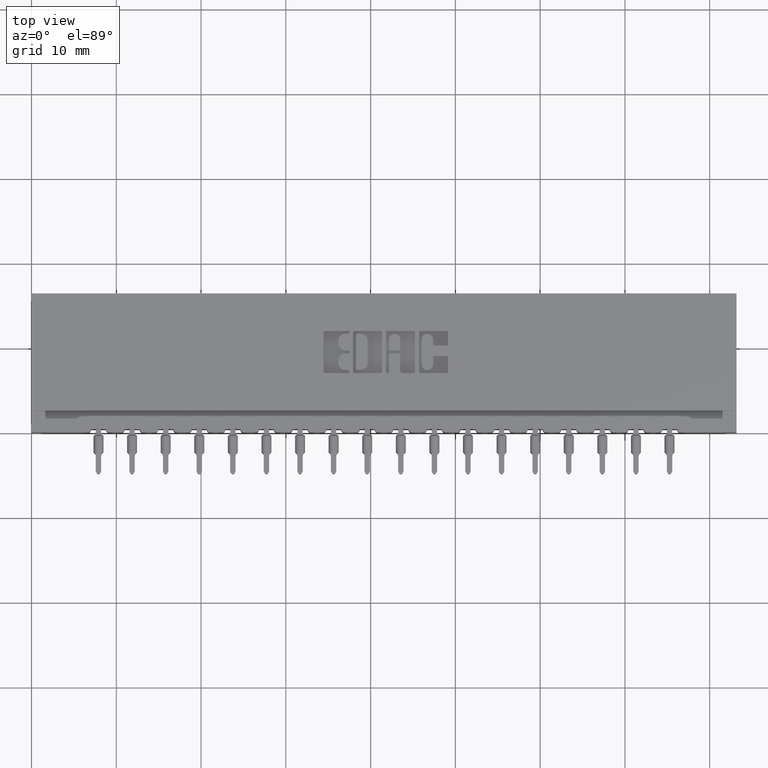
[diagram: clean part render]
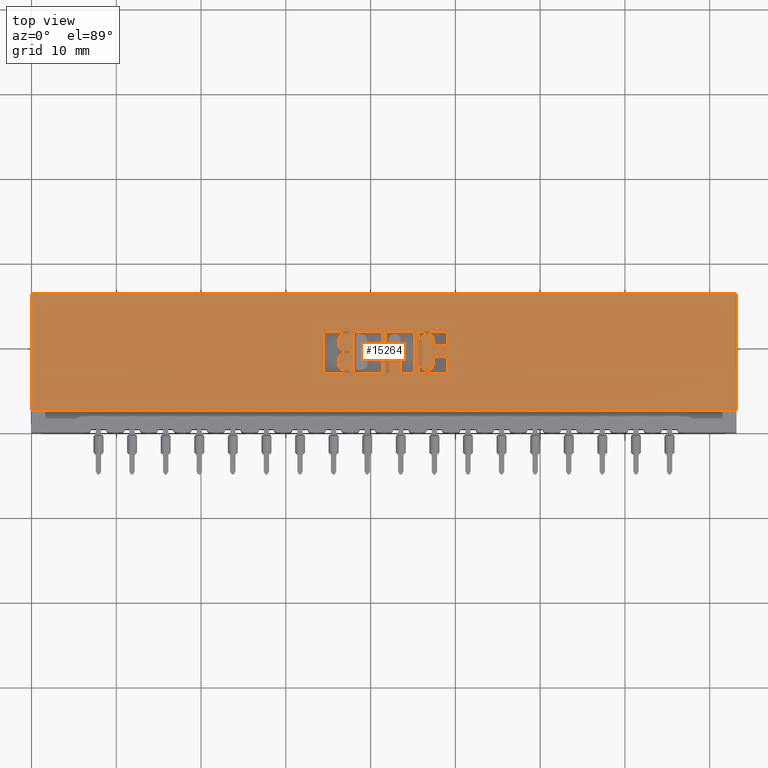
[diagram: same view with one face highlighted and labeled with its STEP entity id]
A machine part, top view. The second image highlights one B-rep face of the part: STEP entity #15264.
In plain terms, the highlighted planar face has unit normal (0, 0, -1).
Its self-contained STEP definition (entity closure, byte-faithful):
#158 = CIRCLE ( 'NONE', #5649, 0.009815670203805798924 ) ;
#236 = AXIS2_PLACEMENT_3D ( 'NONE', #22505, #12315, #9560 ) ;
#253 = CARTESIAN_POINT ( 'NONE',  ( 1.502770709962975904, 0.2743432979619832568, 0.0000000000000000000 ) ) ;
#347 = DIRECTION ( 'NONE',  ( 1.000000000000000000, 0.0000000000000000000, 0.0000000000000000000 ) ) ;
#398 = VERTEX_POINT ( 'NONE', #253 ) ;
#609 = DIRECTION ( 'NONE',  ( 0.0000000000000000000, 1.000000000000000000, -0.0000000000000000000 ) ) ;
#643 = VECTOR ( 'NONE', #17082, 39.37007874015748143 ) ;
#718 = CARTESIAN_POINT ( 'NONE',  ( 1.456637060005083750, 0.3793709691426839226, 0.0000000000000000000 ) ) ;
#761 = DIRECTION ( 'NONE',  ( -0.0000000000000000000, 0.0000000000000000000, 1.000000000000000000 ) ) ;
#783 = AXIS2_PLACEMENT_3D ( 'NONE', #10811, #761, #16483 ) ;
#873 = VECTOR ( 'NONE', #32682, 39.37007874015748143 ) ;
#1005 = VERTEX_POINT ( 'NONE', #10930 ) ;
#1051 = LINE ( 'NONE', #25064, #873 ) ;
#1080 = DIRECTION ( 'NONE',  ( 0.0000000000000000000, -1.000000000000000000, 0.0000000000000000000 ) ) ;
#1193 = ORIENTED_EDGE ( 'NONE', *, *, #5033, .F. ) ;
#1431 = DIRECTION ( 'NONE',  ( 1.000000000000000000, 0.0000000000000000000, 0.0000000000000000000 ) ) ;
#1442 = CARTESIAN_POINT ( 'NONE',  ( 1.356026440416115308, 0.0000000000000000000, 0.0000000000000000000 ) ) ;
#1549 = LINE ( 'NONE', #14684, #21057 ) ;
#1611 = VERTEX_POINT ( 'NONE', #5101 ) ;
#1615 = LINE ( 'NONE', #30823, #17410 ) ;
#1631 = EDGE_CURVE ( 'NONE', #26571, #8167, #6367, .T. ) ;
#1678 = DIRECTION ( 'NONE',  ( -0.0000000000000000000, 0.0000000000000000000, 1.000000000000000000 ) ) ;
#1734 = CIRCLE ( 'NONE', #12750, 0.006870969142662365636 ) ;
#1795 = CARTESIAN_POINT ( 'NONE',  ( 1.645588711428330964, 0.0000000000000000000, 0.0000000000000000000 ) ) ;
#1944 = ORIENTED_EDGE ( 'NONE', *, *, #15078, .T. ) ;
#2037 = VERTEX_POINT ( 'NONE', #33641 ) ;
#2051 = ORIENTED_EDGE ( 'NONE', *, *, #28775, .F. ) ;
#2111 = CIRCLE ( 'NONE', #12034, 0.03141014465221592805 ) ;
#2125 = VERTEX_POINT ( 'NONE', #26521 ) ;
#2132 = LINE ( 'NONE', #20270, #5308 ) ;
#2288 = VERTEX_POINT ( 'NONE', #22362 ) ;
#2301 = CARTESIAN_POINT ( 'NONE',  ( 1.702028815100188108, 0.3656290308573498238, 0.0000000000000000000 ) ) ;
#2310 = VERTEX_POINT ( 'NONE', #19947 ) ;
#2323 = EDGE_CURVE ( 'NONE', #6746, #33596, #11400, .T. ) ;
#2394 = VERTEX_POINT ( 'NONE', #28914 ) ;
#2395 = VERTEX_POINT ( 'NONE', #4559 ) ;
#2487 = VECTOR ( 'NONE', #1431, 39.37007874015748143 ) ;
#2533 = ORIENTED_EDGE ( 'NONE', *, *, #6830, .F. ) ;
#2573 = CARTESIAN_POINT ( 'NONE',  ( 1.470133606535335424, 0.2812142671046480302, 0.0000000000000000000 ) ) ;
#2629 = CARTESIAN_POINT ( 'NONE',  ( 1.618595618367896227, 0.4706567020380511002, 0.0000000000000000000 ) ) ;
#2635 = VECTOR ( 'NONE', #31180, 39.37007874015748143 ) ;
#2647 = CARTESIAN_POINT ( 'NONE',  ( 1.456637060005109507, 0.2880852362473086403, 0.0000000000000000000 ) ) ;
#2718 = EDGE_CURVE ( 'NONE', #24758, #30467, #30186, .T. ) ;
#2766 = ORIENTED_EDGE ( 'NONE', *, *, #11340, .F. ) ;
#2861 = VERTEX_POINT ( 'NONE', #21892 ) ;
#2949 = AXIS2_PLACEMENT_3D ( 'NONE', #19933, #30485, #24926 ) ;
#2969 = CIRCLE ( 'NONE', #28909, 0.006870969142663458512 ) ;
#2990 = AXIS2_PLACEMENT_3D ( 'NONE', #27991, #3793, #7246 ) ;
#3026 = DIRECTION ( 'NONE',  ( -0.0000000000000000000, 0.0000000000000000000, 1.000000000000000000 ) ) ;
#3048 = CARTESIAN_POINT ( 'NONE',  ( 1.456637060005083750, 0.3656290308573568737, 0.0000000000000000000 ) ) ;
#3084 = AXIS2_PLACEMENT_3D ( 'NONE', #7061, #15329, #12907 ) ;
#3152 = LINE ( 'NONE', #13693, #24272 ) ;
#3192 = ORIENTED_EDGE ( 'NONE', *, *, #13673, .F. ) ;
#3206 = LINE ( 'NONE', #3724, #18516 ) ;
#3211 = CARTESIAN_POINT ( 'NONE',  ( 1.874293827176977345, 0.4014562271012336869, 0.0000000000000000000 ) ) ;
#3282 = CARTESIAN_POINT ( 'NONE',  ( 1.923862961706132024, 0.4608410318342109901, 0.0000000000000000000 ) ) ;
#3372 = DIRECTION ( 'NONE',  ( -1.000000000000000000, -3.530861605407645268E-14, 0.0000000000000000000 ) ) ;
#3468 = CARTESIAN_POINT ( 'NONE',  ( 1.456637060005109507, 0.3194953808994904221, 0.0000000000000000000 ) ) ;
#3570 = CIRCLE ( 'NONE', #31172, 0.009815670203796237128 ) ;
#3724 = CARTESIAN_POINT ( 'NONE',  ( -1.290985506876411489E-14, 0.3656290308572897607, 0.0000000000000000000 ) ) ;
#3746 = DIRECTION ( 'NONE',  ( 1.000000000000000000, 0.0000000000000000000, 0.0000000000000000000 ) ) ;
#3778 = DIRECTION ( 'NONE',  ( -0.0000000000000000000, 0.0000000000000000000, 1.000000000000000000 ) ) ;
#3793 = DIRECTION ( 'NONE',  ( 0.0000000000000000000, 0.0000000000000000000, -1.000000000000000000 ) ) ;
#3810 = CARTESIAN_POINT ( 'NONE',  ( 1.425226915352909351, 0.4107811137948584324, 0.0000000000000000000 ) ) ;
#3906 = CARTESIAN_POINT ( 'NONE',  ( 0.0000000000000000000, 0.2743432979619847001, 0.0000000000000000000 ) ) ;
#3912 = ORIENTED_EDGE ( 'NONE', *, *, #27662, .F. ) ;
#3932 = VERTEX_POINT ( 'NONE', #31968 ) ;
#3939 = CARTESIAN_POINT ( 'NONE',  ( 1.864478156973165879, 0.4306578454992600058, 0.0000000000000000000 ) ) ;
#4060 = CARTESIAN_POINT ( 'NONE',  ( 1.711844485303984698, 0.2841589681657878952, 0.0000000000000000000 ) ) ;
#4069 = CIRCLE ( 'NONE', #2949, 0.009815670203806891800 ) ;
#4209 = ORIENTED_EDGE ( 'NONE', *, *, #12998, .F. ) ;
#4216 = EDGE_CURVE ( 'NONE', #17092, #6463, #28301, .T. ) ;
#4316 = CARTESIAN_POINT ( 'NONE',  ( 1.721660155507785506, 0.2743432979619847001, 0.0000000000000000000 ) ) ;
#4376 = ORIENTED_EDGE ( 'NONE', *, *, #16955, .F. ) ;
#4387 = AXIS2_PLACEMENT_3D ( 'NONE', #17251, #24858, #11938 ) ;
#4396 = LINE ( 'NONE', #25640, #4624 ) ;
#4509 = VERTEX_POINT ( 'NONE', #11529 ) ;
#4559 = CARTESIAN_POINT ( 'NONE',  ( 1.477004575677973497, 0.3725000000000204259, 0.0000000000000000000 ) ) ;
#4587 = EDGE_CURVE ( 'NONE', #1611, #20311, #27936, .T. ) ;
#4615 = LINE ( 'NONE', #14660, #8554 ) ;
#4624 = VECTOR ( 'NONE', #8158, 39.37007874015748143 ) ;
#4647 = LINE ( 'NONE', #23127, #26966 ) ;
#4679 = VECTOR ( 'NONE', #18958, 39.37007874015748143 ) ;
#4733 = CARTESIAN_POINT ( 'NONE',  ( 1.456637060005125273, 0.4255046191005198430, 0.0000000000000000000 ) ) ;
#4853 = VERTEX_POINT ( 'NONE', #13559 ) ;
#4925 = CARTESIAN_POINT ( 'NONE',  ( 1.781044960240806718, 0.2841589681657809008, 0.0000000000000000000 ) ) ;
#5001 = LINE ( 'NONE', #31608, #29002 ) ;
#5009 = ORIENTED_EDGE ( 'NONE', *, *, #23111, .F. ) ;
#5027 = DIRECTION ( 'NONE',  ( -0.0000000000000000000, 0.0000000000000000000, 1.000000000000000000 ) ) ;
#5033 = EDGE_CURVE ( 'NONE', #32253, #29686, #17167, .T. ) ;
#5075 = CARTESIAN_POINT ( 'NONE',  ( 1.864478156973178979, 0.3440345564089687391, 0.0000000000000000000 ) ) ;
#5101 = CARTESIAN_POINT ( 'NONE',  ( 1.771229290037010573, 0.2743432979619847001, 0.0000000000000000000 ) ) ;
#5128 = EDGE_CURVE ( 'NONE', #2037, #19229, #2111, .T. ) ;
#5131 = CIRCLE ( 'NONE', #24439, 0.009815670203811535655 ) ;
#5134 = EDGE_CURVE ( 'NONE', #15915, #4853, #20613, .T. ) ;
#5156 = ORIENTED_EDGE ( 'NONE', *, *, #31310, .T. ) ;
#5237 = DIRECTION ( 'NONE',  ( -0.0000000000000000000, 0.0000000000000000000, 1.000000000000000000 ) ) ;
#5308 = VECTOR ( 'NONE', #12671, 39.37007874015748143 ) ;
#5377 = DIRECTION ( 'NONE',  ( 1.000000000000000000, 0.0000000000000000000, 0.0000000000000000000 ) ) ;
#5471 = ORIENTED_EDGE ( 'NONE', *, *, #10643, .F. ) ;
#5497 = ORIENTED_EDGE ( 'NONE', *, *, #33847, .F. ) ;
#5553 = ORIENTED_EDGE ( 'NONE', *, *, #5134, .F. ) ;
#5589 = ORIENTED_EDGE ( 'NONE', *, *, #12853, .F. ) ;
#5649 = AXIS2_PLACEMENT_3D ( 'NONE', #28446, #20487, #20840 ) ;
#5738 = EDGE_LOOP ( 'NONE', ( #21510, #25984, #11813, #2766, #18086, #17281, #7097, #9175, #8680, #18837, #28041, #9651, #30108, #17525 ) ) ;
#5812 = CARTESIAN_POINT ( 'NONE',  ( 1.425226915352909351, 0.0000000000000000000, 0.0000000000000000000 ) ) ;
#5832 = CIRCLE ( 'NONE', #783, 0.009815670203806891800 ) ;
#5835 = EDGE_CURVE ( 'NONE', #13544, #22786, #33098, .T. ) ;
#6028 = EDGE_CURVE ( 'NONE', #2288, #9000, #1051, .T. ) ;
#6056 = ORIENTED_EDGE ( 'NONE', *, *, #7776, .F. ) ;
#6064 = CARTESIAN_POINT ( 'NONE',  ( 1.923862961706134245, 0.2743432979619832568, 0.0000000000000000000 ) ) ;
#6129 = VERTEX_POINT ( 'NONE', #13835 ) ;
#6153 = ORIENTED_EDGE ( 'NONE', *, *, #17781, .F. ) ;
#6346 = CARTESIAN_POINT ( 'NONE',  ( -0.0000000000000000000, 0.2743432979619832568, 0.0000000000000000000 ) ) ;
#6367 = CIRCLE ( 'NONE', #30104, 0.009815670203795690690 ) ;
#6437 = CARTESIAN_POINT ( 'NONE',  ( 1.365842110619918559, 0.2743432979619850332, 0.0000000000000000000 ) ) ;
#6450 = ORIENTED_EDGE ( 'NONE', *, *, #29310, .F. ) ;
#6463 = VERTEX_POINT ( 'NONE', #14161 ) ;
#6482 = DIRECTION ( 'NONE',  ( -0.0000000000000000000, 0.0000000000000000000, 1.000000000000000000 ) ) ;
#6746 = VERTEX_POINT ( 'NONE', #18273 ) ;
#6782 = EDGE_CURVE ( 'NONE', #26571, #18786, #16815, .T. ) ;
#6830 = EDGE_CURVE ( 'NONE', #7519, #2395, #2969, .T. ) ;
#6881 = ORIENTED_EDGE ( 'NONE', *, *, #13089, .F. ) ;
#6920 = FACE_BOUND ( 'NONE', #30653, .T. ) ;
#6955 = EDGE_CURVE ( 'NONE', #6746, #15508, #28218, .T. ) ;
#6995 = VECTOR ( 'NONE', #9003, 39.37007874015748143 ) ;
#7059 = VERTEX_POINT ( 'NONE', #2647 ) ;
#7061 = CARTESIAN_POINT ( 'NONE',  ( 1.655404381632127331, 0.4608410318342101575, 0.0000000000000000000 ) ) ;
#7090 = FACE_OUTER_BOUND ( 'NONE', #25928, .T. ) ;
#7097 = ORIENTED_EDGE ( 'NONE', *, *, #4216, .T. ) ;
#7198 = CARTESIAN_POINT ( 'NONE',  ( 1.808038053301265213, 0.2841589681657900046, 0.0000000000000000000 ) ) ;
#7214 = LINE ( 'NONE', #26372, #22894 ) ;
#7246 = DIRECTION ( 'NONE',  ( -1.000000000000000000, 0.0000000000000000000, -0.0000000000000000000 ) ) ;
#7262 = ORIENTED_EDGE ( 'NONE', *, *, #31668, .F. ) ;
#7291 = AXIS2_PLACEMENT_3D ( 'NONE', #27613, #3778, #14322 ) ;
#7298 = DIRECTION ( 'NONE',  ( -0.0000000000000000000, 0.0000000000000000000, 1.000000000000000000 ) ) ;
#7378 = ORIENTED_EDGE ( 'NONE', *, *, #25014, .F. ) ;
#7410 = VECTOR ( 'NONE', #609, 39.37007874015748143 ) ;
#7484 = ORIENTED_EDGE ( 'NONE', *, *, #30984, .F. ) ;
#7519 = VERTEX_POINT ( 'NONE', #29201 ) ;
#7630 = CARTESIAN_POINT ( 'NONE',  ( 1.923862961706153119, 0.3440345564089705155, 0.0000000000000000000 ) ) ;
#7654 = ORIENTED_EDGE ( 'NONE', *, *, #20747, .F. ) ;
#7670 = EDGE_CURVE ( 'NONE', #16441, #30217, #27101, .T. ) ;
#7694 = DIRECTION ( 'NONE',  ( 1.000000000000000000, 0.0000000000000000000, 0.0000000000000000000 ) ) ;
#7702 = EDGE_CURVE ( 'NONE', #21013, #15915, #10055, .T. ) ;
#7712 = AXIS2_PLACEMENT_3D ( 'NONE', #22727, #1678, #20164 ) ;
#7776 = EDGE_CURVE ( 'NONE', #11384, #23712, #1549, .T. ) ;
#7819 = CARTESIAN_POINT ( 'NONE',  ( 1.628411288571669058, 0.0000000000000000000, 0.0000000000000000000 ) ) ;
#7821 = EDGE_CURVE ( 'NONE', #23712, #23455, #8932, .T. ) ;
#7892 = CARTESIAN_POINT ( 'NONE',  ( 1.874293827176966909, 0.3538502266127576124, 0.0000000000000000000 ) ) ;
#7920 = VERTEX_POINT ( 'NONE', #10796 ) ;
#7926 = DIRECTION ( 'NONE',  ( 1.000000000000000000, 0.0000000000000000000, 0.0000000000000000000 ) ) ;
#7935 = CARTESIAN_POINT ( 'NONE',  ( 1.933678631909972134, 0.4112718973050387139, 0.0000000000000000000 ) ) ;
#7978 = DIRECTION ( 'NONE',  ( -0.0000000000000000000, 0.0000000000000000000, 1.000000000000000000 ) ) ;
#8158 = DIRECTION ( 'NONE',  ( -1.000000000000000000, 0.0000000000000000000, 0.0000000000000000000 ) ) ;
#8167 = VERTEX_POINT ( 'NONE', #26855 ) ;
#8357 = VECTOR ( 'NONE', #30490, 39.37007874015748143 ) ;
#8429 = ORIENTED_EDGE ( 'NONE', *, *, #7821, .F. ) ;
#8554 = VECTOR ( 'NONE', #25198, 39.37007874015748143 ) ;
#8586 = CIRCLE ( 'NONE', #24581, 0.006870969142663458512 ) ;
#8675 = DIRECTION ( 'NONE',  ( -1.000000000000000000, -1.189163988687022540E-13, 0.0000000000000000000 ) ) ;
#8680 = ORIENTED_EDGE ( 'NONE', *, *, #29518, .T. ) ;
#8685 = CARTESIAN_POINT ( 'NONE',  ( 1.874293827176977345, 0.4112718973050452642, 0.0000000000000000000 ) ) ;
#8708 = VERTEX_POINT ( 'NONE', #6437 ) ;
#8895 = CARTESIAN_POINT ( 'NONE',  ( 1.470133606535335424, 0.2812142671046480302, 0.0000000000000000000 ) ) ;
#8932 = CIRCLE ( 'NONE', #7291, 0.009815670203806345362 ) ;
#8937 = CARTESIAN_POINT ( 'NONE',  ( -0.0000000000000000000, 0.3656290308573568737, 0.0000000000000000000 ) ) ;
#9000 = VERTEX_POINT ( 'NONE', #21739 ) ;
#9003 = DIRECTION ( 'NONE',  ( -0.0000000000000000000, -1.000000000000000000, -0.0000000000000000000 ) ) ;
#9168 = CARTESIAN_POINT ( 'NONE',  ( 1.456637060005083750, 0.3342188862052006271, 0.0000000000000000000 ) ) ;
#9175 = ORIENTED_EDGE ( 'NONE', *, *, #25825, .T. ) ;
#9248 = CARTESIAN_POINT ( 'NONE',  ( 1.425226915352927781, 0.3342188862052006271, 0.0000000000000000000 ) ) ;
#9258 = DIRECTION ( 'NONE',  ( 1.000000000000000000, 0.0000000000000000000, 0.0000000000000000000 ) ) ;
#9329 = VERTEX_POINT ( 'NONE', #32262 ) ;
#9341 = CARTESIAN_POINT ( 'NONE',  ( 1.933678631909972134, 0.0000000000000000000, 0.0000000000000000000 ) ) ;
#9403 = LINE ( 'NONE', #1442, #10200 ) ;
#9551 = EDGE_CURVE ( 'NONE', #10424, #11384, #13953, .T. ) ;
#9560 = DIRECTION ( 'NONE',  ( 1.000000000000000000, 0.0000000000000000000, 0.0000000000000000000 ) ) ;
#9587 = CARTESIAN_POINT ( 'NONE',  ( 1.470133606535309889, 0.3725000000000204259, 0.0000000000000000000 ) ) ;
#9623 = CIRCLE ( 'NONE', #236, 0.009815670203797057652 ) ;
#9651 = ORIENTED_EDGE ( 'NONE', *, *, #2323, .F. ) ;
#9719 = AXIS2_PLACEMENT_3D ( 'NONE', #31735, #3026, #29137 ) ;
#9800 = DIRECTION ( 'NONE',  ( 1.000000000000000000, 0.0000000000000000000, 0.0000000000000000000 ) ) ;
#9822 = DIRECTION ( 'NONE',  ( 1.000000000000000000, 0.0000000000000000000, 0.0000000000000000000 ) ) ;
#9906 = EDGE_CURVE ( 'NONE', #13579, #20764, #4069, .T. ) ;
#10055 = CIRCLE ( 'NONE', #13333, 0.009815670203788042295 ) ;
#10124 = DIRECTION ( 'NONE',  ( -0.0000000000000000000, 0.0000000000000000000, 1.000000000000000000 ) ) ;
#10200 = VECTOR ( 'NONE', #1080, 39.37007874015748143 ) ;
#10212 = VERTEX_POINT ( 'NONE', #21442 ) ;
#10247 = LINE ( 'NONE', #25953, #15260 ) ;
#10290 = CARTESIAN_POINT ( 'NONE',  ( 1.470133606535309889, 0.3725000000000204259, 0.0000000000000000000 ) ) ;
#10298 = ORIENTED_EDGE ( 'NONE', *, *, #25363, .F. ) ;
#10332 = VERTEX_POINT ( 'NONE', #3939 ) ;
#10406 = CARTESIAN_POINT ( 'NONE',  ( 1.470133606535351189, 0.4637857328953863267, 0.0000000000000000000 ) ) ;
#10424 = VERTEX_POINT ( 'NONE', #23267 ) ;
#10433 = DIRECTION ( 'NONE',  ( 0.0000000000000000000, -1.000000000000000000, 0.0000000000000000000 ) ) ;
#10643 = EDGE_CURVE ( 'NONE', #29222, #19229, #18929, .T. ) ;
#10796 = CARTESIAN_POINT ( 'NONE',  ( 1.798222383097458410, 0.4608410318342101575, 0.0000000000000000000 ) ) ;
#10797 = CIRCLE ( 'NONE', #9719, 0.009815670203822736764 ) ;
#10811 = CARTESIAN_POINT ( 'NONE',  ( 1.502770709962975904, 0.2841589681657900046, 0.0000000000000000000 ) ) ;
#10854 = DIRECTION ( 'NONE',  ( -0.0000000000000000000, 0.0000000000000000000, 1.000000000000000000 ) ) ;
#10890 = CARTESIAN_POINT ( 'NONE',  ( 1.655404381632127331, 0.4706567020380066912, 0.0000000000000000000 ) ) ;
#10930 = CARTESIAN_POINT ( 'NONE',  ( 1.470133606415414240, 0.2880852362473102501, 0.0000000000000000000 ) ) ;
#11155 = AXIS2_PLACEMENT_3D ( 'NONE', #20239, #12291, #19887 ) ;
#11171 = VERTEX_POINT ( 'NONE', #2301 ) ;
#11254 = DIRECTION ( 'NONE',  ( 1.000000000000000000, 0.0000000000000000000, 0.0000000000000000000 ) ) ;
#11340 = EDGE_CURVE ( 'NONE', #1611, #18786, #3570, .T. ) ;
#11384 = VERTEX_POINT ( 'NONE', #13839 ) ;
#11400 = CIRCLE ( 'NONE', #18011, 0.006870969142657995000 ) ;
#11529 = CARTESIAN_POINT ( 'NONE',  ( 1.477004575677999698, 0.4637857328953863267, 0.0000000000000000000 ) ) ;
#11713 = ORIENTED_EDGE ( 'NONE', *, *, #26564, .F. ) ;
#11746 = FACE_BOUND ( 'NONE', #29475, .T. ) ;
#11813 = ORIENTED_EDGE ( 'NONE', *, *, #6782, .T. ) ;
#11938 = DIRECTION ( 'NONE',  ( 1.000000000000000000, 0.0000000000000000000, 0.0000000000000000000 ) ) ;
#12011 = CARTESIAN_POINT ( 'NONE',  ( 1.470133606415414240, 0.2743432979619857548, 0.0000000000000000000 ) ) ;
#12034 = AXIS2_PLACEMENT_3D ( 'NONE', #4733, #5237, #33767 ) ;
#12051 = DIRECTION ( 'NONE',  ( -0.0000000000000000000, 0.0000000000000000000, 1.000000000000000000 ) ) ;
#12104 = DIRECTION ( 'NONE',  ( 1.000000000000000000, 0.0000000000000000000, 0.0000000000000000000 ) ) ;
#12130 = LINE ( 'NONE', #17112, #6995 ) ;
#12135 = CARTESIAN_POINT ( 'NONE',  ( 0.0000000000000000000, 0.6449999999999999067, 0.0000000000000000000 ) ) ;
#12166 = DIRECTION ( 'NONE',  ( -1.000000000000000000, 0.0000000000000000000, 0.0000000000000000000 ) ) ;
#12271 = VERTEX_POINT ( 'NONE', #21665 ) ;
#12291 = DIRECTION ( 'NONE',  ( -0.0000000000000000000, 0.0000000000000000000, 1.000000000000000000 ) ) ;
#12315 = DIRECTION ( 'NONE',  ( -0.0000000000000000000, 0.0000000000000000000, 1.000000000000000000 ) ) ;
#12319 = ORIENTED_EDGE ( 'NONE', *, *, #20804, .F. ) ;
#12377 = CIRCLE ( 'NONE', #31693, 0.02625691779517367111 ) ;
#12390 = VERTEX_POINT ( 'NONE', #27393 ) ;
#12567 = CARTESIAN_POINT ( 'NONE',  ( 3.274000000000000021, 0.6449999999999999067, 0.0000000000000000000 ) ) ;
#12602 = CARTESIAN_POINT ( 'NONE',  ( 1.711844485303984698, 0.0000000000000000000, 0.0000000000000000000 ) ) ;
#12643 = ORIENTED_EDGE ( 'NONE', *, *, #19657, .T. ) ;
#12666 = CARTESIAN_POINT ( 'NONE',  ( 0.0000000000000000000, 0.3793709691426839226, 0.0000000000000000000 ) ) ;
#12671 = DIRECTION ( 'NONE',  ( -1.000000000000000000, 0.0000000000000000000, 0.0000000000000000000 ) ) ;
#12717 = CARTESIAN_POINT ( 'NONE',  ( 1.808038053301299186, 0.4608410318342101575, 0.0000000000000000000 ) ) ;
#12750 = AXIS2_PLACEMENT_3D ( 'NONE', #8895, #32569, #9258 ) ;
#12817 = LINE ( 'NONE', #7819, #17228 ) ;
#12853 = EDGE_CURVE ( 'NONE', #9329, #14618, #2132, .T. ) ;
#12907 = DIRECTION ( 'NONE',  ( 1.000000000000000000, 0.0000000000000000000, 0.0000000000000000000 ) ) ;
#12998 = EDGE_CURVE ( 'NONE', #3932, #24749, #10247, .T. ) ;
#13005 = ORIENTED_EDGE ( 'NONE', *, *, #2718, .F. ) ;
#13020 = ORIENTED_EDGE ( 'NONE', *, *, #31493, .F. ) ;
#13022 = CARTESIAN_POINT ( 'NONE',  ( 1.771229290037010573, 0.2841589681657809008, 0.0000000000000000000 ) ) ;
#13068 = DIRECTION ( 'NONE',  ( -0.0000000000000000000, 0.0000000000000000000, 1.000000000000000000 ) ) ;
#13089 = EDGE_CURVE ( 'NONE', #1005, #7059, #29223, .T. ) ;
#13130 = EDGE_CURVE ( 'NONE', #30217, #9329, #29611, .T. ) ;
#13218 = CARTESIAN_POINT ( 'NONE',  ( 1.808038053301299186, 0.4706567020380511002, 0.0000000000000000000 ) ) ;
#13258 = ORIENTED_EDGE ( 'NONE', *, *, #17516, .F. ) ;
#13260 = DIRECTION ( 'NONE',  ( -0.0000000000000000000, 0.0000000000000000000, 1.000000000000000000 ) ) ;
#13333 = AXIS2_PLACEMENT_3D ( 'NONE', #14331, #13973, #22255 ) ;
#13544 = VERTEX_POINT ( 'NONE', #31954 ) ;
#13559 = CARTESIAN_POINT ( 'NONE',  ( 1.864478156973178979, 0.3143421540424530258, 0.0000000000000000000 ) ) ;
#13579 = VERTEX_POINT ( 'NONE', #21904 ) ;
#13673 = EDGE_CURVE ( 'NONE', #20764, #33541, #12817, .T. ) ;
#13681 = DIRECTION ( 'NONE',  ( 1.000000000000000000, 0.0000000000000000000, 0.0000000000000000000 ) ) ;
#13693 = CARTESIAN_POINT ( 'NONE',  ( -0.0000000000000000000, 0.4706567020380066912, 0.0000000000000000000 ) ) ;
#13835 = CARTESIAN_POINT ( 'NONE',  ( 1.502770709963010098, 0.4706567020380511002, 0.0000000000000000000 ) ) ;
#13839 = CARTESIAN_POINT ( 'NONE',  ( 1.808038053301265213, 0.2743432979619832568, 0.0000000000000000000 ) ) ;
#13842 = CARTESIAN_POINT ( 'NONE',  ( 1.470133606535309889, 0.3793709691426839226, 0.0000000000000000000 ) ) ;
#13953 = CIRCLE ( 'NONE', #21126, 0.009815670203806619448 ) ;
#13973 = DIRECTION ( 'NONE',  ( -0.0000000000000000000, 0.0000000000000000000, 1.000000000000000000 ) ) ;
#13999 = DIRECTION ( 'NONE',  ( -0.0000000000000000000, 0.0000000000000000000, 1.000000000000000000 ) ) ;
#14024 = EDGE_CURVE ( 'NONE', #31986, #24749, #24990, .T. ) ;
#14098 = VECTOR ( 'NONE', #30363, 39.37007874015748143 ) ;
#14161 = CARTESIAN_POINT ( 'NONE',  ( 1.711844485303984698, 0.3558133606535435201, 0.0000000000000000000 ) ) ;
#14187 = AXIS2_PLACEMENT_3D ( 'NONE', #12717, #12051, #9800 ) ;
#14322 = DIRECTION ( 'NONE',  ( 1.000000000000000000, 0.0000000000000000000, 0.0000000000000000000 ) ) ;
#14331 = CARTESIAN_POINT ( 'NONE',  ( 1.874293827176966909, 0.3440345564089696273, 0.0000000000000000000 ) ) ;
#14593 = DIRECTION ( 'NONE',  ( -0.0000000000000000000, -1.000000000000000000, -0.0000000000000000000 ) ) ;
#14602 = CIRCLE ( 'NONE', #33929, 0.009815670203786949419 ) ;
#14618 = VERTEX_POINT ( 'NONE', #13218 ) ;
#14660 = CARTESIAN_POINT ( 'NONE',  ( 1.659330649713646855, 0.0000000000000000000, 0.0000000000000000000 ) ) ;
#14684 = CARTESIAN_POINT ( 'NONE',  ( -0.0000000000000000000, 0.2743432979619832568, 0.0000000000000000000 ) ) ;
#15014 = EDGE_CURVE ( 'NONE', #2861, #21013, #4396, .T. ) ;
#15078 = EDGE_CURVE ( 'NONE', #29222, #25744, #23359, .T. ) ;
#15119 = CARTESIAN_POINT ( 'NONE',  ( 3.274000000000000021, 0.1000000000000000056, 0.0000000000000000000 ) ) ;
#15149 = DIRECTION ( 'NONE',  ( -0.0000000000000000000, 0.0000000000000000000, 1.000000000000000000 ) ) ;
#15192 = DIRECTION ( 'NONE',  ( 0.0000000000000000000, -1.000000000000000000, 0.0000000000000000000 ) ) ;
#15260 = VECTOR ( 'NONE', #31832, 39.37007874015748143 ) ;
#15264 = ADVANCED_FACE ( 'NONE', ( #11746, #17612, #7090, #6920, #30415 ), #22262, .F. ) ;
#15329 = DIRECTION ( 'NONE',  ( -0.0000000000000000000, 0.0000000000000000000, 1.000000000000000000 ) ) ;
#15390 = ORIENTED_EDGE ( 'NONE', *, *, #32335, .F. ) ;
#15422 = EDGE_LOOP ( 'NONE', ( #16138, #5471, #1944, #3912, #31687, #2533, #7654, #22296, #4209, #27166, #6881, #16538, #13005, #11713, #12319, #13258, #4376, #24689, #5009, #5497, #10298 ) ) ;
#15508 = VERTEX_POINT ( 'NONE', #27069 ) ;
#15532 = DIRECTION ( 'NONE',  ( 0.0000000000000000000, 1.000000000000000000, -0.0000000000000000000 ) ) ;
#15534 = DIRECTION ( 'NONE',  ( 1.000000000000000000, 0.0000000000000000000, 0.0000000000000000000 ) ) ;
#15760 = CIRCLE ( 'NONE', #25700, 0.009815670203804980135 ) ;
#15769 = LINE ( 'NONE', #33936, #30800 ) ;
#15775 = CARTESIAN_POINT ( 'NONE',  ( 1.864478156973165879, 0.4112718973050452642, 0.0000000000000000000 ) ) ;
#15915 = VERTEX_POINT ( 'NONE', #5075 ) ;
#16138 = ORIENTED_EDGE ( 'NONE', *, *, #5128, .T. ) ;
#16233 = EDGE_CURVE ( 'NONE', #30119, #32253, #16609, .T. ) ;
#16294 = DIRECTION ( 'NONE',  ( 1.000000000000000000, 0.0000000000000000000, 0.0000000000000000000 ) ) ;
#16391 = LINE ( 'NONE', #16554, #31353 ) ;
#16441 = VERTEX_POINT ( 'NONE', #7935 ) ;
#16483 = DIRECTION ( 'NONE',  ( 1.000000000000000000, 0.0000000000000000000, 0.0000000000000000000 ) ) ;
#16538 = ORIENTED_EDGE ( 'NONE', *, *, #22423, .F. ) ;
#16554 = CARTESIAN_POINT ( 'NONE',  ( 1.811964321382818488, 0.0000000000000000000, 0.0000000000000000000 ) ) ;
#16609 = LINE ( 'NONE', #30301, #2487 ) ;
#16751 = DIRECTION ( 'NONE',  ( 1.000000000000000000, 0.0000000000000000000, 0.0000000000000000000 ) ) ;
#16755 = EDGE_CURVE ( 'NONE', #29686, #21090, #7214, .T. ) ;
#16815 = LINE ( 'NONE', #33255, #8357 ) ;
#16832 = EDGE_CURVE ( 'NONE', #2310, #16441, #15760, .T. ) ;
#16901 = CARTESIAN_POINT ( 'NONE',  ( 1.477004575677997700, 0.2812142671046480302, 0.0000000000000000000 ) ) ;
#16955 = EDGE_CURVE ( 'NONE', #9000, #17591, #10797, .T. ) ;
#17082 = DIRECTION ( 'NONE',  ( 0.0000000000000000000, 1.000000000000000000, -0.0000000000000000000 ) ) ;
#17092 = VERTEX_POINT ( 'NONE', #4060 ) ;
#17112 = CARTESIAN_POINT ( 'NONE',  ( 0.0000000000000000000, 0.6449999999999999067, 0.0000000000000000000 ) ) ;
#17167 = LINE ( 'NONE', #28067, #20831 ) ;
#17228 = VECTOR ( 'NONE', #31334, 39.37007874015748143 ) ;
#17231 = EDGE_CURVE ( 'NONE', #2395, #19757, #8586, .T. ) ;
#17243 = DIRECTION ( 'NONE',  ( 1.000000000000000000, 0.0000000000000000000, 0.0000000000000000000 ) ) ;
#17251 = CARTESIAN_POINT ( 'NONE',  ( 1.470133606535351189, 0.4637857328953863267, 0.0000000000000000000 ) ) ;
#17281 = ORIENTED_EDGE ( 'NONE', *, *, #23832, .F. ) ;
#17378 = VERTEX_POINT ( 'NONE', #26840 ) ;
#17410 = VECTOR ( 'NONE', #12166, 39.37007874015748143 ) ;
#17516 = EDGE_CURVE ( 'NONE', #17591, #2394, #9403, .T. ) ;
#17525 = ORIENTED_EDGE ( 'NONE', *, *, #28421, .F. ) ;
#17584 = CIRCLE ( 'NONE', #29711, 0.009815670203841039831 ) ;
#17591 = VERTEX_POINT ( 'NONE', #20272 ) ;
#17612 = FACE_BOUND ( 'NONE', #15422, .T. ) ;
#17679 = DIRECTION ( 'NONE',  ( 0.0000000000000000000, -1.000000000000000000, 0.0000000000000000000 ) ) ;
#17704 = EDGE_CURVE ( 'NONE', #12271, #398, #5832, .T. ) ;
#17781 = EDGE_CURVE ( 'NONE', #10212, #2861, #14602, .T. ) ;
#17820 = DIRECTION ( 'NONE',  ( 1.000000000000000000, 0.0000000000000000000, 0.0000000000000000000 ) ) ;
#18011 = AXIS2_PLACEMENT_3D ( 'NONE', #27709, #33263, #34124 ) ;
#18086 = ORIENTED_EDGE ( 'NONE', *, *, #4587, .T. ) ;
#18156 = CARTESIAN_POINT ( 'NONE',  ( 1.933678631909972134, 0.4608410318341948919, 0.0000000000000000000 ) ) ;
#18223 = EDGE_CURVE ( 'NONE', #22786, #33596, #4615, .T. ) ;
#18226 = ORIENTED_EDGE ( 'NONE', *, *, #7670, .F. ) ;
#18240 = ORIENTED_EDGE ( 'NONE', *, *, #30980, .F. ) ;
#18273 = CARTESIAN_POINT ( 'NONE',  ( 1.645588711428330964, 0.2812142671046480302, 0.0000000000000000000 ) ) ;
#18516 = VECTOR ( 'NONE', #3372, 39.37007874015748143 ) ;
#18609 = VECTOR ( 'NONE', #17679, 39.37007874015748143 ) ;
#18769 = CIRCLE ( 'NONE', #19348, 0.03141014465218178175 ) ;
#18786 = VERTEX_POINT ( 'NONE', #4925 ) ;
#18837 = ORIENTED_EDGE ( 'NONE', *, *, #5835, .T. ) ;
#18929 = LINE ( 'NONE', #5812, #7410 ) ;
#18958 = DIRECTION ( 'NONE',  ( 1.000000000000000000, 7.203446383881654569E-15, 0.0000000000000000000 ) ) ;
#19066 = LINE ( 'NONE', #24069, #21159 ) ;
#19150 = CARTESIAN_POINT ( 'NONE',  ( -1.976217237646357461E-15, 0.2743432979619752077, 0.0000000000000000000 ) ) ;
#19229 = VERTEX_POINT ( 'NONE', #19845 ) ;
#19310 = ORIENTED_EDGE ( 'NONE', *, *, #20748, .F. ) ;
#19335 = VECTOR ( 'NONE', #33431, 39.37007874015748143 ) ;
#19348 = AXIS2_PLACEMENT_3D ( 'NONE', #3468, #32522, #13681 ) ;
#19587 = CARTESIAN_POINT ( 'NONE',  ( 1.933678631909940160, 0.2841589681657830102, 0.0000000000000000000 ) ) ;
#19657 = EDGE_CURVE ( 'NONE', #30119, #21090, #12130, .T. ) ;
#19712 = ORIENTED_EDGE ( 'NONE', *, *, #7702, .F. ) ;
#19757 = VERTEX_POINT ( 'NONE', #13842 ) ;
#19845 = CARTESIAN_POINT ( 'NONE',  ( 1.425226915352909351, 0.4255046191005198430, 0.0000000000000000000 ) ) ;
#19887 = DIRECTION ( 'NONE',  ( 1.000000000000000000, 0.0000000000000000000, 0.0000000000000000000 ) ) ;
#19933 = CARTESIAN_POINT ( 'NONE',  ( 1.618595618367862032, 0.2841589681657900046, 0.0000000000000000000 ) ) ;
#19947 = CARTESIAN_POINT ( 'NONE',  ( 1.923862961706167107, 0.4014562271012336869, 0.0000000000000000000 ) ) ;
#20097 = VECTOR ( 'NONE', #20583, 39.37007874015748143 ) ;
#20164 = DIRECTION ( 'NONE',  ( 1.000000000000000000, 0.0000000000000000000, 0.0000000000000000000 ) ) ;
#20238 = CIRCLE ( 'NONE', #3084, 0.009815670203796511215 ) ;
#20239 = CARTESIAN_POINT ( 'NONE',  ( 1.721660155507787948, 0.2841589681657878952, 0.0000000000000000000 ) ) ;
#20241 = ORIENTED_EDGE ( 'NONE', *, *, #16755, .F. ) ;
#20270 = CARTESIAN_POINT ( 'NONE',  ( 0.0000000000000000000, 0.4706567020380511002, 0.0000000000000000000 ) ) ;
#20272 = CARTESIAN_POINT ( 'NONE',  ( 1.356026440416115308, 0.4608410318342101575, 0.0000000000000000000 ) ) ;
#20311 = VERTEX_POINT ( 'NONE', #4316 ) ;
#20487 = DIRECTION ( 'NONE',  ( -0.0000000000000000000, 0.0000000000000000000, 1.000000000000000000 ) ) ;
#20582 = EDGE_CURVE ( 'NONE', #33541, #28842, #27188, .T. ) ;
#20583 = DIRECTION ( 'NONE',  ( -1.000000000000000000, 0.0000000000000000000, 0.0000000000000000000 ) ) ;
#20613 = LINE ( 'NONE', #23708, #2635 ) ;
#20646 = LINE ( 'NONE', #31208, #34090 ) ;
#20747 = EDGE_CURVE ( 'NONE', #31986, #7519, #32610, .T. ) ;
#20748 = EDGE_CURVE ( 'NONE', #398, #13579, #22402, .T. ) ;
#20764 = VERTEX_POINT ( 'NONE', #30212 ) ;
#20766 = ORIENTED_EDGE ( 'NONE', *, *, #27702, .T. ) ;
#20804 = EDGE_CURVE ( 'NONE', #2394, #8708, #158, .T. ) ;
#20831 = VECTOR ( 'NONE', #14593, 39.37007874015748143 ) ;
#20840 = DIRECTION ( 'NONE',  ( 1.000000000000000000, 0.0000000000000000000, 0.0000000000000000000 ) ) ;
#20888 = DIRECTION ( 'NONE',  ( 1.000000000000000000, 0.0000000000000000000, 0.0000000000000000000 ) ) ;
#20968 = CARTESIAN_POINT ( 'NONE',  ( 1.811964321382818488, 0.4306578459575296502, 0.0000000000000000000 ) ) ;
#21013 = VERTEX_POINT ( 'NONE', #7892 ) ;
#21057 = VECTOR ( 'NONE', #12104, 39.37007874015748143 ) ;
#21078 = CARTESIAN_POINT ( 'NONE',  ( 1.456637060005083750, 0.4107811137948584324, 0.0000000000000000000 ) ) ;
#21090 = VERTEX_POINT ( 'NONE', #32409 ) ;
#21126 = AXIS2_PLACEMENT_3D ( 'NONE', #7198, #10124, #23232 ) ;
#21159 = VECTOR ( 'NONE', #21476, 39.37007874015748143 ) ;
#21362 = CIRCLE ( 'NONE', #27447, 0.02625691779518022489 ) ;
#21436 = EDGE_CURVE ( 'NONE', #23081, #8167, #3152, .T. ) ;
#21442 = CARTESIAN_POINT ( 'NONE',  ( 1.933678631909940160, 0.3440345564089705155, 0.0000000000000000000 ) ) ;
#21476 = DIRECTION ( 'NONE',  ( 1.000000000000000000, 0.0000000000000000000, 0.0000000000000000000 ) ) ;
#21510 = ORIENTED_EDGE ( 'NONE', *, *, #21436, .T. ) ;
#21617 = CIRCLE ( 'NONE', #11155, 0.009815670203803340821 ) ;
#21665 = CARTESIAN_POINT ( 'NONE',  ( 1.492955039759169100, 0.2841589681657900046, 0.0000000000000000000 ) ) ;
#21718 = EDGE_CURVE ( 'NONE', #3932, #7059, #18769, .T. ) ;
#21739 = CARTESIAN_POINT ( 'NONE',  ( 1.365842110619938099, 0.4706567020380327815, 0.0000000000000000000 ) ) ;
#21892 = CARTESIAN_POINT ( 'NONE',  ( 1.923862961706156449, 0.3538502266127576124, 0.0000000000000000000 ) ) ;
#21904 = CARTESIAN_POINT ( 'NONE',  ( 1.618595618367862032, 0.2743432979619832568, 0.0000000000000000000 ) ) ;
#22255 = DIRECTION ( 'NONE',  ( 1.000000000000000000, 0.0000000000000000000, 0.0000000000000000000 ) ) ;
#22262 = PLANE ( 'NONE',  #2990 ) ;
#22296 = ORIENTED_EDGE ( 'NONE', *, *, #14024, .T. ) ;
#22362 = CARTESIAN_POINT ( 'NONE',  ( 1.470133606535351189, 0.4706567020380327815, 0.0000000000000000000 ) ) ;
#22381 = AXIS2_PLACEMENT_3D ( 'NONE', #2573, #10854, #20888 ) ;
#22402 = LINE ( 'NONE', #6346, #32153 ) ;
#22421 = ORIENTED_EDGE ( 'NONE', *, *, #9551, .F. ) ;
#22423 = EDGE_CURVE ( 'NONE', #30467, #1005, #1734, .T. ) ;
#22475 = ORIENTED_EDGE ( 'NONE', *, *, #16233, .F. ) ;
#22505 = CARTESIAN_POINT ( 'NONE',  ( 1.702028815100187664, 0.3558133606535528459, 0.0000000000000000000 ) ) ;
#22520 = LINE ( 'NONE', #23191, #18609 ) ;
#22525 = DIRECTION ( 'NONE',  ( -0.0000000000000000000, 0.0000000000000000000, 1.000000000000000000 ) ) ;
#22560 = DIRECTION ( 'NONE',  ( 1.000000000000000000, 0.0000000000000000000, 0.0000000000000000000 ) ) ;
#22727 = CARTESIAN_POINT ( 'NONE',  ( 1.669146319917450105, 0.3558133606535456295, 0.0000000000000000000 ) ) ;
#22782 = VERTEX_POINT ( 'NONE', #15775 ) ;
#22786 = VERTEX_POINT ( 'NONE', #23705 ) ;
#22894 = VECTOR ( 'NONE', #22919, 39.37007874015748143 ) ;
#22919 = DIRECTION ( 'NONE',  ( -1.000000000000000000, -0.0000000000000000000, -0.0000000000000000000 ) ) ;
#23058 = DIRECTION ( 'NONE',  ( 1.000000000000000000, 0.0000000000000000000, 0.0000000000000000000 ) ) ;
#23081 = VERTEX_POINT ( 'NONE', #10890 ) ;
#23094 = ORIENTED_EDGE ( 'NONE', *, *, #17704, .F. ) ;
#23111 = EDGE_CURVE ( 'NONE', #4509, #2288, #25471, .T. ) ;
#23127 = CARTESIAN_POINT ( 'NONE',  ( 1.798222383097458410, 0.0000000000000000000, 0.0000000000000000000 ) ) ;
#23191 = CARTESIAN_POINT ( 'NONE',  ( 1.492955039759169100, 0.0000000000000000000, 0.0000000000000000000 ) ) ;
#23232 = DIRECTION ( 'NONE',  ( 1.000000000000000000, 0.0000000000000000000, 0.0000000000000000000 ) ) ;
#23267 = CARTESIAN_POINT ( 'NONE',  ( 1.798222383097458410, 0.2841589681657900046, 0.0000000000000000000 ) ) ;
#23359 = CIRCLE ( 'NONE', #27776, 0.03141014465217440571 ) ;
#23455 = VERTEX_POINT ( 'NONE', #19587 ) ;
#23548 = DIRECTION ( 'NONE',  ( -0.0000000000000000000, 0.0000000000000000000, 1.000000000000000000 ) ) ;
#23705 = CARTESIAN_POINT ( 'NONE',  ( 1.659330649713646855, 0.3558133606535456295, 0.0000000000000000000 ) ) ;
#23708 = CARTESIAN_POINT ( 'NONE',  ( 1.864478156973178979, 0.0000000000000000000, 0.0000000000000000000 ) ) ;
#23712 = VERTEX_POINT ( 'NONE', #6064 ) ;
#23792 = ORIENTED_EDGE ( 'NONE', *, *, #20582, .F. ) ;
#23832 = EDGE_CURVE ( 'NONE', #17092, #20311, #21617, .T. ) ;
#24069 = CARTESIAN_POINT ( 'NONE',  ( -0.0000000000000000000, 0.4569147637527357642, 0.0000000000000000000 ) ) ;
#24091 = CARTESIAN_POINT ( 'NONE',  ( 1.771229290037011461, 0.4608410318342104350, 0.0000000000000000000 ) ) ;
#24272 = VECTOR ( 'NONE', #7694, 39.37007874015748143 ) ;
#24439 = AXIS2_PLACEMENT_3D ( 'NONE', #8685, #26974, #11254 ) ;
#24581 = AXIS2_PLACEMENT_3D ( 'NONE', #10290, #28239, #23058 ) ;
#24605 = DIRECTION ( 'NONE',  ( 1.000000000000000000, 0.0000000000000000000, 0.0000000000000000000 ) ) ;
#24635 = VECTOR ( 'NONE', #8675, 39.37007874015748143 ) ;
#24675 = CIRCLE ( 'NONE', #14187, 0.009815670203840767480 ) ;
#24689 = ORIENTED_EDGE ( 'NONE', *, *, #6028, .F. ) ;
#24749 = VERTEX_POINT ( 'NONE', #9248 ) ;
#24758 = VERTEX_POINT ( 'NONE', #12011 ) ;
#24858 = DIRECTION ( 'NONE',  ( -0.0000000000000000000, 0.0000000000000000000, 1.000000000000000000 ) ) ;
#24926 = DIRECTION ( 'NONE',  ( 1.000000000000000000, 0.0000000000000000000, 0.0000000000000000000 ) ) ;
#24990 = CIRCLE ( 'NONE', #27216, 0.03141014465215610091 ) ;
#25014 = EDGE_CURVE ( 'NONE', #22782, #30656, #5131, .T. ) ;
#25064 = CARTESIAN_POINT ( 'NONE',  ( 0.0000000000000000000, 0.4706567020380327815, 0.0000000000000000000 ) ) ;
#25198 = DIRECTION ( 'NONE',  ( 0.0000000000000000000, -1.000000000000000000, 0.0000000000000000000 ) ) ;
#25218 = DIRECTION ( 'NONE',  ( -0.0000000000000000000, 0.0000000000000000000, 1.000000000000000000 ) ) ;
#25363 = EDGE_CURVE ( 'NONE', #2037, #12390, #19066, .T. ) ;
#25471 = CIRCLE ( 'NONE', #26001, 0.006870969142648433205 ) ;
#25571 = VERTEX_POINT ( 'NONE', #20968 ) ;
#25640 = CARTESIAN_POINT ( 'NONE',  ( 0.0000000000000000000, 0.3538502266127576124, 0.0000000000000000000 ) ) ;
#25700 = AXIS2_PLACEMENT_3D ( 'NONE', #33651, #15149, #9822 ) ;
#25718 = DIRECTION ( 'NONE',  ( 0.0000000000000000000, 1.000000000000000000, -0.0000000000000000000 ) ) ;
#25744 = VERTEX_POINT ( 'NONE', #718 ) ;
#25825 = EDGE_CURVE ( 'NONE', #6463, #11171, #9623, .T. ) ;
#25928 = EDGE_LOOP ( 'NONE', ( #12643, #20241, #1193, #22475 ) ) ;
#25953 = CARTESIAN_POINT ( 'NONE',  ( 1.425226915352927781, 0.0000000000000000000, 0.0000000000000000000 ) ) ;
#25984 = ORIENTED_EDGE ( 'NONE', *, *, #1631, .F. ) ;
#26001 = AXIS2_PLACEMENT_3D ( 'NONE', #10406, #5027, #347 ) ;
#26007 = CARTESIAN_POINT ( 'NONE',  ( 1.502770709963010098, 0.4608410318342101575, 0.0000000000000000000 ) ) ;
#26372 = CARTESIAN_POINT ( 'NONE',  ( 3.274000000000000021, 0.1000000000000000056, 0.0000000000000000000 ) ) ;
#26521 = CARTESIAN_POINT ( 'NONE',  ( 1.811964321382818488, 0.3143421540424530258, 0.0000000000000000000 ) ) ;
#26564 = EDGE_CURVE ( 'NONE', #8708, #24758, #29695, .T. ) ;
#26571 = VERTEX_POINT ( 'NONE', #26741 ) ;
#26685 = VECTOR ( 'NONE', #25718, 39.37007874015748143 ) ;
#26741 = CARTESIAN_POINT ( 'NONE',  ( 1.781044960240806718, 0.4608410318342010537, 0.0000000000000000000 ) ) ;
#26769 = DIRECTION ( 'NONE',  ( 0.0000000000000000000, 1.000000000000000000, -0.0000000000000000000 ) ) ;
#26840 = CARTESIAN_POINT ( 'NONE',  ( 1.492955039759169100, 0.4608410318342101575, 0.0000000000000000000 ) ) ;
#26855 = CARTESIAN_POINT ( 'NONE',  ( 1.771229290037013682, 0.4706567020380066912, 0.0000000000000000000 ) ) ;
#26962 = CARTESIAN_POINT ( 'NONE',  ( -3.425805886174868038E-14, 0.2880852362471354455, 0.0000000000000000000 ) ) ;
#26966 = VECTOR ( 'NONE', #15192, 39.37007874015748143 ) ;
#26974 = DIRECTION ( 'NONE',  ( -0.0000000000000000000, 0.0000000000000000000, 1.000000000000000000 ) ) ;
#27069 = CARTESIAN_POINT ( 'NONE',  ( 1.645588711428330964, 0.4608410318342101575, 0.0000000000000000000 ) ) ;
#27101 = LINE ( 'NONE', #9341, #643 ) ;
#27166 = ORIENTED_EDGE ( 'NONE', *, *, #21718, .T. ) ;
#27188 = CIRCLE ( 'NONE', #29387, 0.009815670203841039831 ) ;
#27216 = AXIS2_PLACEMENT_3D ( 'NONE', #9168, #25218, #17243 ) ;
#27368 = CARTESIAN_POINT ( 'NONE',  ( 1.838221239177998623, 0.3143421540424530258, 0.0000000000000000000 ) ) ;
#27393 = CARTESIAN_POINT ( 'NONE',  ( 1.470133606535351412, 0.4569147637527357642, 0.0000000000000000000 ) ) ;
#27447 = AXIS2_PLACEMENT_3D ( 'NONE', #27368, #6482, #16294 ) ;
#27613 = CARTESIAN_POINT ( 'NONE',  ( 1.923862961706134245, 0.2841589681657900046, 0.0000000000000000000 ) ) ;
#27662 = EDGE_CURVE ( 'NONE', #19757, #25744, #28721, .T. ) ;
#27702 = EDGE_CURVE ( 'NONE', #10332, #25571, #12377, .T. ) ;
#27709 = CARTESIAN_POINT ( 'NONE',  ( 1.652459680570987022, 0.2812142671046480302, 0.0000000000000000000 ) ) ;
#27732 = VECTOR ( 'NONE', #30020, 39.37007874015748143 ) ;
#27776 = AXIS2_PLACEMENT_3D ( 'NONE', #21078, #7978, #5377 ) ;
#27936 = LINE ( 'NONE', #3906, #14098 ) ;
#27989 = ORIENTED_EDGE ( 'NONE', *, *, #16832, .F. ) ;
#27991 = CARTESIAN_POINT ( 'NONE',  ( 0.0000000000000000000, 0.6449999999999999067, 0.0000000000000000000 ) ) ;
#28009 = DIRECTION ( 'NONE',  ( -0.0000000000000000000, 0.0000000000000000000, 1.000000000000000000 ) ) ;
#28041 = ORIENTED_EDGE ( 'NONE', *, *, #18223, .T. ) ;
#28067 = CARTESIAN_POINT ( 'NONE',  ( 3.274000000000000021, 0.6449999999999999067, 0.0000000000000000000 ) ) ;
#28218 = LINE ( 'NONE', #1795, #19335 ) ;
#28239 = DIRECTION ( 'NONE',  ( -0.0000000000000000000, 0.0000000000000000000, 1.000000000000000000 ) ) ;
#28261 = DIRECTION ( 'NONE',  ( -0.0000000000000000000, 0.0000000000000000000, 1.000000000000000000 ) ) ;
#28301 = LINE ( 'NONE', #12602, #26685 ) ;
#28421 = EDGE_CURVE ( 'NONE', #23081, #15508, #20238, .T. ) ;
#28446 = CARTESIAN_POINT ( 'NONE',  ( 1.365842110619922112, 0.2841589681657900046, 0.0000000000000000000 ) ) ;
#28721 = LINE ( 'NONE', #12666, #20097 ) ;
#28775 = EDGE_CURVE ( 'NONE', #28842, #6129, #1615, .T. ) ;
#28781 = DIRECTION ( 'NONE',  ( 1.000000000000000000, 0.0000000000000000000, 0.0000000000000000000 ) ) ;
#28842 = VERTEX_POINT ( 'NONE', #2629 ) ;
#28866 = CARTESIAN_POINT ( 'NONE',  ( 1.659330649713646855, 0.2812142671046480302, 0.0000000000000000000 ) ) ;
#28909 = AXIS2_PLACEMENT_3D ( 'NONE', #9587, #22525, #24605 ) ;
#28914 = CARTESIAN_POINT ( 'NONE',  ( 1.356026440416115308, 0.2841589681657900046, 0.0000000000000000000 ) ) ;
#28940 = CIRCLE ( 'NONE', #4387, 0.006870969142648433205 ) ;
#29002 = VECTOR ( 'NONE', #15532, 39.37007874015748143 ) ;
#29137 = DIRECTION ( 'NONE',  ( 1.000000000000000000, 0.0000000000000000000, 0.0000000000000000000 ) ) ;
#29201 = CARTESIAN_POINT ( 'NONE',  ( 1.470133606415388927, 0.3656290308573568737, 0.0000000000000000000 ) ) ;
#29222 = VERTEX_POINT ( 'NONE', #3810 ) ;
#29223 = LINE ( 'NONE', #26962, #24635 ) ;
#29310 = EDGE_CURVE ( 'NONE', #23455, #10212, #5001, .T. ) ;
#29387 = AXIS2_PLACEMENT_3D ( 'NONE', #31764, #13260, #7926 ) ;
#29475 = EDGE_LOOP ( 'NONE', ( #27989, #7484, #7378, #13020, #20766, #7262, #5156, #5553, #19712, #33036, #6153, #6450, #8429, #6056, #22421, #30692, #18240, #5589, #29530, #18226 ) ) ;
#29518 = EDGE_CURVE ( 'NONE', #11171, #13544, #3206, .T. ) ;
#29530 = ORIENTED_EDGE ( 'NONE', *, *, #13130, .F. ) ;
#29611 = CIRCLE ( 'NONE', #33503, 0.009815670203839946956 ) ;
#29686 = VERTEX_POINT ( 'NONE', #15119 ) ;
#29695 = LINE ( 'NONE', #19150, #4679 ) ;
#29711 = AXIS2_PLACEMENT_3D ( 'NONE', #26007, #28261, #30532 ) ;
#29897 = ORIENTED_EDGE ( 'NONE', *, *, #9906, .F. ) ;
#30020 = DIRECTION ( 'NONE',  ( 1.000000000000000000, 0.0000000000000000000, 0.0000000000000000000 ) ) ;
#30104 = AXIS2_PLACEMENT_3D ( 'NONE', #24091, #13068, #28781 ) ;
#30108 = ORIENTED_EDGE ( 'NONE', *, *, #6955, .T. ) ;
#30119 = VERTEX_POINT ( 'NONE', #12135 ) ;
#30172 = ORIENTED_EDGE ( 'NONE', *, *, #31387, .F. ) ;
#30186 = CIRCLE ( 'NONE', #22381, 0.006870969142662365636 ) ;
#30212 = CARTESIAN_POINT ( 'NONE',  ( 1.628411288571669058, 0.2841589681657900046, 0.0000000000000000000 ) ) ;
#30217 = VERTEX_POINT ( 'NONE', #18156 ) ;
#30301 = CARTESIAN_POINT ( 'NONE',  ( 0.0000000000000000000, 0.6449999999999999067, 0.0000000000000000000 ) ) ;
#30363 = DIRECTION ( 'NONE',  ( -1.000000000000000000, 0.0000000000000000000, 0.0000000000000000000 ) ) ;
#30415 = FACE_BOUND ( 'NONE', #5738, .T. ) ;
#30467 = VERTEX_POINT ( 'NONE', #16901 ) ;
#30485 = DIRECTION ( 'NONE',  ( -0.0000000000000000000, 0.0000000000000000000, 1.000000000000000000 ) ) ;
#30490 = DIRECTION ( 'NONE',  ( 0.0000000000000000000, -1.000000000000000000, 0.0000000000000000000 ) ) ;
#30532 = DIRECTION ( 'NONE',  ( 1.000000000000000000, 0.0000000000000000000, 0.0000000000000000000 ) ) ;
#30653 = EDGE_LOOP ( 'NONE', ( #23792, #3192, #29897, #19310, #23094, #30172, #15390, #2051 ) ) ;
#30656 = VERTEX_POINT ( 'NONE', #3211 ) ;
#30692 = ORIENTED_EDGE ( 'NONE', *, *, #33123, .F. ) ;
#30800 = VECTOR ( 'NONE', #10433, 39.37007874015748143 ) ;
#30823 = CARTESIAN_POINT ( 'NONE',  ( 0.0000000000000000000, 0.4706567020380511002, 0.0000000000000000000 ) ) ;
#30980 = EDGE_CURVE ( 'NONE', #14618, #7920, #24675, .T. ) ;
#30984 = EDGE_CURVE ( 'NONE', #30656, #2310, #20646, .T. ) ;
#31142 = CARTESIAN_POINT ( 'NONE',  ( 1.838221239177992183, 0.4306578459575296502, 0.0000000000000000000 ) ) ;
#31172 = AXIS2_PLACEMENT_3D ( 'NONE', #13022, #23548, #34117 ) ;
#31180 = DIRECTION ( 'NONE',  ( 0.0000000000000000000, -1.000000000000000000, 0.0000000000000000000 ) ) ;
#31208 = CARTESIAN_POINT ( 'NONE',  ( -0.0000000000000000000, 0.4014562271012336869, 0.0000000000000000000 ) ) ;
#31310 = EDGE_CURVE ( 'NONE', #2125, #4853, #21362, .T. ) ;
#31334 = DIRECTION ( 'NONE',  ( 0.0000000000000000000, 1.000000000000000000, -0.0000000000000000000 ) ) ;
#31353 = VECTOR ( 'NONE', #26769, 39.37007874015748143 ) ;
#31387 = EDGE_CURVE ( 'NONE', #17378, #12271, #22520, .T. ) ;
#31493 = EDGE_CURVE ( 'NONE', #10332, #22782, #15769, .T. ) ;
#31608 = CARTESIAN_POINT ( 'NONE',  ( 1.933678631909940160, 0.0000000000000000000, 0.0000000000000000000 ) ) ;
#31668 = EDGE_CURVE ( 'NONE', #2125, #25571, #16391, .T. ) ;
#31687 = ORIENTED_EDGE ( 'NONE', *, *, #17231, .F. ) ;
#31693 = AXIS2_PLACEMENT_3D ( 'NONE', #31142, #7298, #17820 ) ;
#31735 = CARTESIAN_POINT ( 'NONE',  ( 1.365842110619938099, 0.4608410318342101575, 0.0000000000000000000 ) ) ;
#31764 = CARTESIAN_POINT ( 'NONE',  ( 1.618595618367827838, 0.4608410318342100465, 0.0000000000000000000 ) ) ;
#31817 = CARTESIAN_POINT ( 'NONE',  ( 1.628411288571669058, 0.4608410318342101575, 0.0000000000000000000 ) ) ;
#31832 = DIRECTION ( 'NONE',  ( 0.0000000000000000000, 1.000000000000000000, -0.0000000000000000000 ) ) ;
#31954 = CARTESIAN_POINT ( 'NONE',  ( 1.669146319917450105, 0.3656290308573487136, 0.0000000000000000000 ) ) ;
#31968 = CARTESIAN_POINT ( 'NONE',  ( 1.425226915352927781, 0.3194953808994904221, 0.0000000000000000000 ) ) ;
#31986 = VERTEX_POINT ( 'NONE', #3048 ) ;
#32153 = VECTOR ( 'NONE', #3746, 39.37007874015748143 ) ;
#32253 = VERTEX_POINT ( 'NONE', #12567 ) ;
#32262 = CARTESIAN_POINT ( 'NONE',  ( 1.923862961706168440, 0.4706567020380511002, 0.0000000000000000000 ) ) ;
#32335 = EDGE_CURVE ( 'NONE', #6129, #17378, #17584, .T. ) ;
#32409 = CARTESIAN_POINT ( 'NONE',  ( 0.0000000000000000000, 0.1000000000000000056, 0.0000000000000000000 ) ) ;
#32522 = DIRECTION ( 'NONE',  ( -0.0000000000000000000, 0.0000000000000000000, 1.000000000000000000 ) ) ;
#32569 = DIRECTION ( 'NONE',  ( -0.0000000000000000000, 0.0000000000000000000, 1.000000000000000000 ) ) ;
#32610 = LINE ( 'NONE', #8937, #27732 ) ;
#32682 = DIRECTION ( 'NONE',  ( -1.000000000000000000, 0.0000000000000000000, 0.0000000000000000000 ) ) ;
#33036 = ORIENTED_EDGE ( 'NONE', *, *, #15014, .F. ) ;
#33098 = CIRCLE ( 'NONE', #7712, 0.009815670203803340821 ) ;
#33123 = EDGE_CURVE ( 'NONE', #7920, #10424, #4647, .T. ) ;
#33255 = CARTESIAN_POINT ( 'NONE',  ( 1.781044960240806718, 0.0000000000000000000, 0.0000000000000000000 ) ) ;
#33263 = DIRECTION ( 'NONE',  ( -0.0000000000000000000, 0.0000000000000000000, 1.000000000000000000 ) ) ;
#33431 = DIRECTION ( 'NONE',  ( 0.0000000000000000000, 1.000000000000000000, -0.0000000000000000000 ) ) ;
#33503 = AXIS2_PLACEMENT_3D ( 'NONE', #3282, #13999, #16751 ) ;
#33541 = VERTEX_POINT ( 'NONE', #31817 ) ;
#33596 = VERTEX_POINT ( 'NONE', #28866 ) ;
#33641 = CARTESIAN_POINT ( 'NONE',  ( 1.456637060005125273, 0.4569147637527357642, 0.0000000000000000000 ) ) ;
#33651 = CARTESIAN_POINT ( 'NONE',  ( 1.923862961706167107, 0.4112718973050387139, 0.0000000000000000000 ) ) ;
#33767 = DIRECTION ( 'NONE',  ( 1.000000000000000000, 0.0000000000000000000, 0.0000000000000000000 ) ) ;
#33847 = EDGE_CURVE ( 'NONE', #12390, #4509, #28940, .T. ) ;
#33929 = AXIS2_PLACEMENT_3D ( 'NONE', #7630, #28009, #15534 ) ;
#33936 = CARTESIAN_POINT ( 'NONE',  ( 1.864478156973165879, 0.0000000000000000000, 0.0000000000000000000 ) ) ;
#34090 = VECTOR ( 'NONE', #22560, 39.37007874015748143 ) ;
#34117 = DIRECTION ( 'NONE',  ( 1.000000000000000000, 0.0000000000000000000, 0.0000000000000000000 ) ) ;
#34124 = DIRECTION ( 'NONE',  ( 1.000000000000000000, 0.0000000000000000000, 0.0000000000000000000 ) ) ;